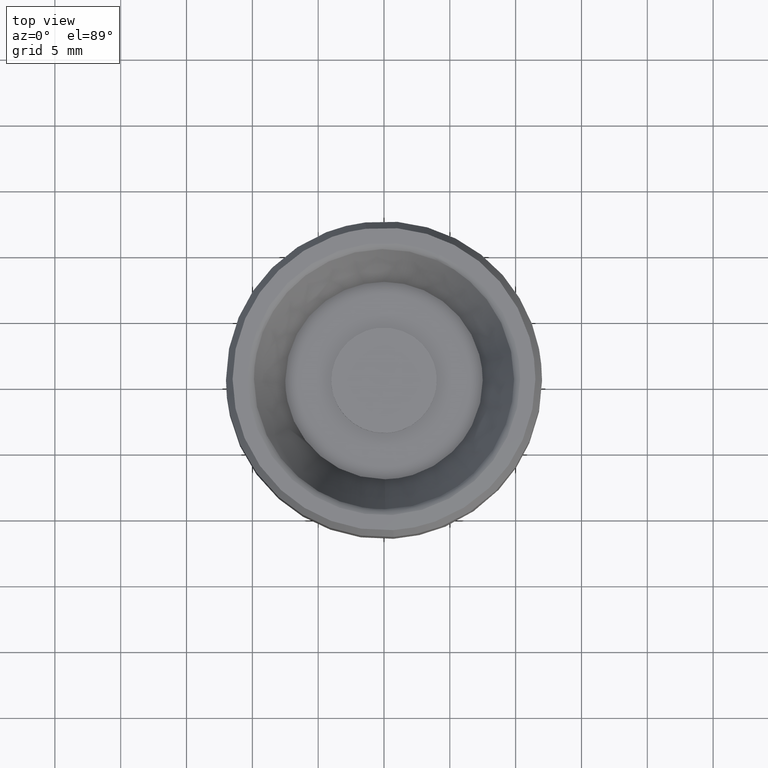
[diagram: clean part render]
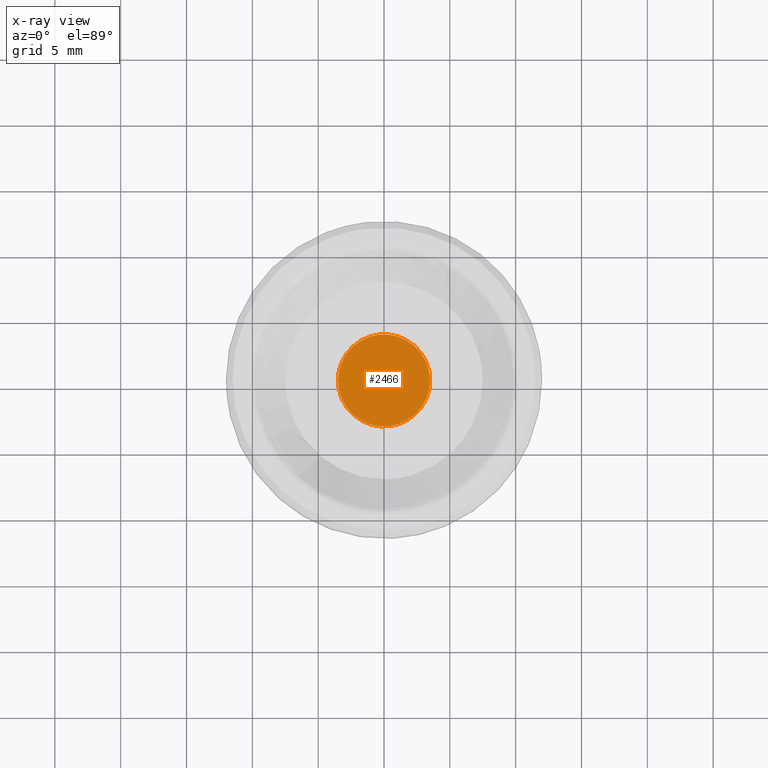
[diagram: x-ray — body ghosted, one internal face saturated and labeled with its STEP entity id]
A machine part, top view, then the same camera in x-ray: the body is ghosted and one INTERNAL B-rep face — a face not visible from any outside direction — is saturated and labeled: STEP entity #2466.
In plain terms, the highlighted face is a freeform B-spline surface patch.
Its self-contained STEP definition (entity closure, byte-faithful):
#1065=CARTESIAN_POINT('',(-3.500000000000000,0.0,9.500000000000000));
#1066=VERTEX_POINT('',#1065);
#1067=CARTESIAN_POINT('',(-0.274606835077602,-3.489210668063575,9.500000000000000));
#1068=VERTEX_POINT('',#1067);
#1069=CARTESIAN_POINT('',(-3.500000000000000,0.0,9.500000000000000));
#1070=CARTESIAN_POINT('',(-3.499999999999999,-3.235366720747653,9.500000000000002));
#1071=CARTESIAN_POINT('',(-0.274606835077602,-3.489210668063576,9.500000000000000));
#1079=(BOUNDED_CURVE()B_SPLINE_CURVE(2,(#1069,#1070,#1071),.UNSPECIFIED.,.F.,.U.)B_SPLINE_CURVE_WITH_KNOTS((3,3),(0.0,0.236331300629805),.UNSPECIFIED.)CURVE()GEOMETRIC_REPRESENTATION_ITEM()RATIONAL_B_SPLINE_CURVE((1.0,0.723120658608667,0.969723356165634))REPRESENTATION_ITEM(''));
#1080=EDGE_CURVE('',#1066,#1068,#1079,.T.);
#1121=CARTESIAN_POINT('',(0.274606835077602,3.489210668063575,9.500000000000000));
#1122=VERTEX_POINT('',#1121);
#1128=CARTESIAN_POINT('',(0.274606835077602,3.489210668063575,9.500000000000000));
#1129=CARTESIAN_POINT('',(0.137515374557127,3.500000000000000,9.500000000000000));
#1130=CARTESIAN_POINT('',(0.0,3.500000000000000,9.500000000000000));
#1131=CARTESIAN_POINT('',(-3.500000000000000,3.500000000000000,9.500000000000000));
#1132=CARTESIAN_POINT('',(-3.500000000000000,0.0,9.500000000000000));
#1140=(BOUNDED_CURVE()B_SPLINE_CURVE(2,(#1128,#1129,#1130,#1131,#1132),.UNSPECIFIED.,.F.,.U.)B_SPLINE_CURVE_WITH_KNOTS((3,2,3),(0.736331300629805,0.750000000000000,1.0),.UNSPECIFIED.)CURVE()GEOMETRIC_REPRESENTATION_ITEM()RATIONAL_B_SPLINE_CURVE((0.969723356165634,0.983986122577881,1.0,0.707106781186547,1.0))REPRESENTATION_ITEM(''));
#1141=EDGE_CURVE('',#1122,#1066,#1140,.T.);
#1164=CARTESIAN_POINT('',(3.500000000000000,0.0,9.500000000000000));
#1165=VERTEX_POINT('',#1164);
#1166=CARTESIAN_POINT('',(-0.274606835077602,-3.489210668063575,9.500000000000000));
#1167=CARTESIAN_POINT('',(-0.137515374557127,-3.500000000000000,9.500000000000000));
#1168=CARTESIAN_POINT('',(0.0,-3.500000000000000,9.500000000000000));
#1169=CARTESIAN_POINT('',(3.500000000000000,-3.500000000000000,9.500000000000000));
#1170=CARTESIAN_POINT('',(3.500000000000000,0.0,9.500000000000000));
#1178=(BOUNDED_CURVE()B_SPLINE_CURVE(2,(#1166,#1167,#1168,#1169,#1170),.UNSPECIFIED.,.F.,.U.)B_SPLINE_CURVE_WITH_KNOTS((3,2,3),(0.236331300629805,0.250000000000000,0.500000000000000),.UNSPECIFIED.)CURVE()GEOMETRIC_REPRESENTATION_ITEM()RATIONAL_B_SPLINE_CURVE((0.969723356165634,0.983986122577881,1.0,0.707106781186547,1.0))REPRESENTATION_ITEM(''));
#1179=EDGE_CURVE('',#1068,#1165,#1178,.T.);
#1181=CARTESIAN_POINT('',(3.500000000000000,0.0,9.500000000000000));
#1182=CARTESIAN_POINT('',(3.499999999999999,3.235366720747632,9.500000000000000));
#1183=CARTESIAN_POINT('',(0.274606835077602,3.489210668063576,9.500000000000002));
#1191=(BOUNDED_CURVE()B_SPLINE_CURVE(2,(#1181,#1182,#1183),.UNSPECIFIED.,.F.,.U.)B_SPLINE_CURVE_WITH_KNOTS((3,3),(0.500000000000000,0.736331300629804),.UNSPECIFIED.)CURVE()GEOMETRIC_REPRESENTATION_ITEM()RATIONAL_B_SPLINE_CURVE((1.0,0.723120658608668,0.969723356165632))REPRESENTATION_ITEM(''));
#1192=EDGE_CURVE('',#1165,#1122,#1191,.T.);
#2455=CARTESIAN_POINT('',(-3.849649986432642,3.848581634543897,9.500000000000000));
#2456=CARTESIAN_POINT('',(3.849650174187273,3.848581634543897,9.500000000000000));
#2457=CARTESIAN_POINT('',(-3.849649986432642,-3.848581822298529,9.500000000000000));
#2458=CARTESIAN_POINT('',(3.849650174187273,-3.848581822298529,9.500000000000000));
#2459=B_SPLINE_SURFACE_WITH_KNOTS('',1,1,((#2455,#2457),(#2456,#2458)),.UNSPECIFIED.,.F.,.F.,.U.,(2,2),(2,2),(0.0,7.699300160619915),(0.0,7.697163456842426),.UNSPECIFIED.);
#2460=ORIENTED_EDGE('',*,*,#1141,.F.);
#2461=ORIENTED_EDGE('',*,*,#1192,.F.);
#2462=ORIENTED_EDGE('',*,*,#1179,.F.);
#2463=ORIENTED_EDGE('',*,*,#1080,.F.);
#2464=EDGE_LOOP('',(#2460,#2461,#2462,#2463));
#2465=FACE_OUTER_BOUND('',#2464,.T.);
#2466=ADVANCED_FACE('',(#2465),#2459,.T.);